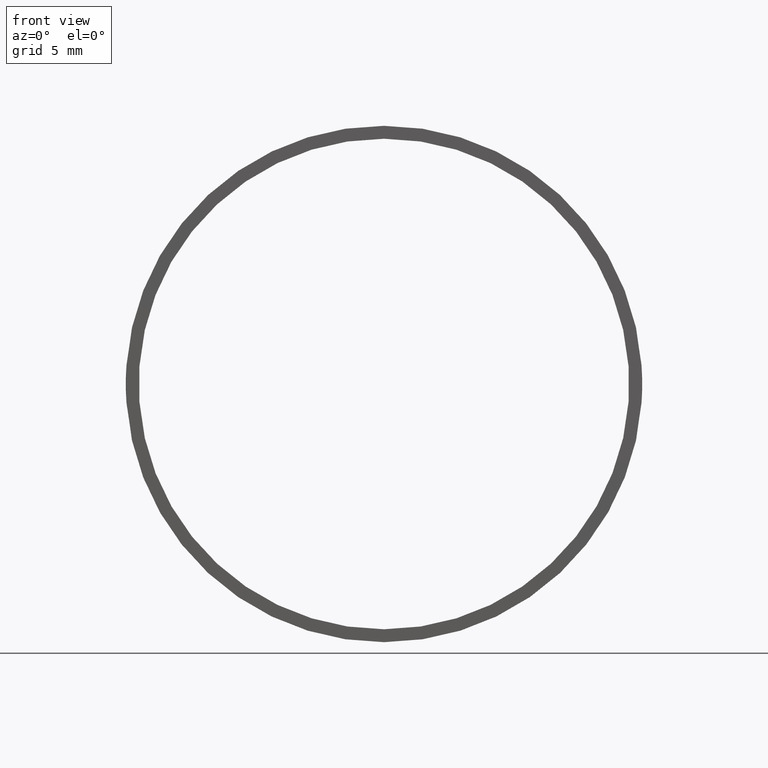
[diagram: clean part render]
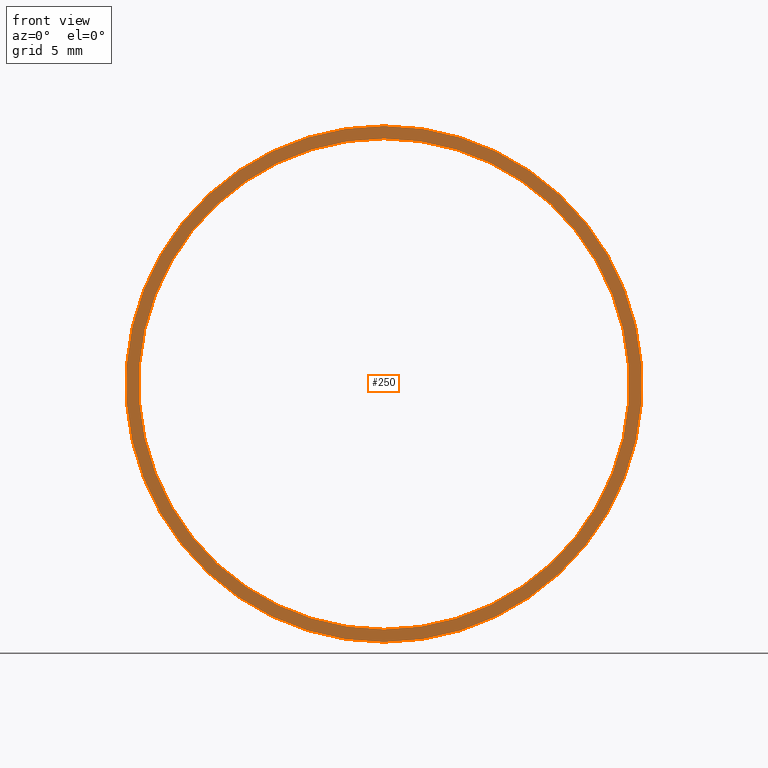
[diagram: same view with one face highlighted and labeled with its STEP entity id]
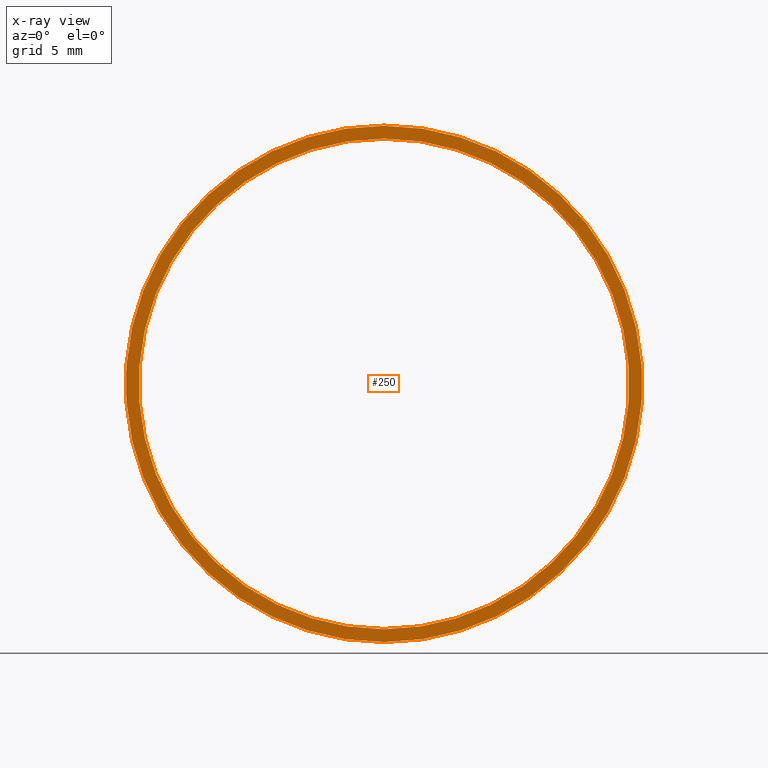
[diagram: x-ray of the same camera — body ghosted, the highlighted face saturated]
A machine part, front view. The second image highlights one B-rep face of the part: STEP entity #250.
The next image is the same camera in x-ray: the body ghosted, the highlighted face saturated — about 0% of this face is hidden behind the body in this view.
In plain terms, the highlighted planar face has unit normal (-0, 1, 0).
Its self-contained STEP definition (entity closure, byte-faithful):
#1 = EDGE_CURVE ( 'NONE', #409, #463, #205, .T. ) ;
#2 = AXIS2_PLACEMENT_3D ( 'NONE', #132, #398, #504 ) ;
#3 = CARTESIAN_POINT ( 'NONE',  ( 0.0000000000000000000, -4.464249787179428900, 0.0000000000000000000 ) ) ;
#34 = EDGE_CURVE ( 'NONE', #463, #409, #164, .T. ) ;
#39 = AXIS2_PLACEMENT_3D ( 'NONE', #147, #416, #326 ) ;
#46 = ORIENTED_EDGE ( 'NONE', *, *, #380, .T. ) ;
#53 = EDGE_CURVE ( 'NONE', #194, #108, #302, .T. ) ;
#96 = FACE_BOUND ( 'NONE', #342, .T. ) ;
#108 = VERTEX_POINT ( 'NONE', #276 ) ;
#125 = FACE_OUTER_BOUND ( 'NONE', #137, .T. ) ;
#132 = CARTESIAN_POINT ( 'NONE',  ( 0.0000000000000000000, -4.464249787179428900, 0.0000000000000000000 ) ) ;
#133 = DIRECTION ( 'NONE',  ( -0.0000000000000000000, 1.000000000000000000, -0.0000000000000000000 ) ) ;
#136 = DIRECTION ( 'NONE',  ( 0.0000000000000000000, 0.0000000000000000000, 1.000000000000000000 ) ) ;
#137 = EDGE_LOOP ( 'NONE', ( #482, #186 ) ) ;
#147 = CARTESIAN_POINT ( 'NONE',  ( 14.25000000000000700, -4.464249787179429800, 0.0000000000000000000 ) ) ;
#164 = CIRCLE ( 'NONE', #224, 15.00000000000000700 ) ;
#170 = CARTESIAN_POINT ( 'NONE',  ( 0.0000000000000000000, -4.464249787179428900, 0.0000000000000000000 ) ) ;
#186 = ORIENTED_EDGE ( 'NONE', *, *, #1, .F. ) ;
#188 = CARTESIAN_POINT ( 'NONE',  ( 0.0000000000000000000, -4.464249787179428900, 14.25000000000000700 ) ) ;
#194 = VERTEX_POINT ( 'NONE', #188 ) ;
#205 = CIRCLE ( 'NONE', #2, 15.00000000000000700 ) ;
#224 = AXIS2_PLACEMENT_3D ( 'NONE', #238, #236, #241 ) ;
#236 = DIRECTION ( 'NONE',  ( -0.0000000000000000000, 1.000000000000000000, -0.0000000000000000000 ) ) ;
#238 = CARTESIAN_POINT ( 'NONE',  ( 0.0000000000000000000, -4.464249787179428900, 0.0000000000000000000 ) ) ;
#240 = DIRECTION ( 'NONE',  ( -0.0000000000000000000, 1.000000000000000000, -0.0000000000000000000 ) ) ;
#241 = DIRECTION ( 'NONE',  ( 0.0000000000000000000, 0.0000000000000000000, 1.000000000000000000 ) ) ;
#250 = ADVANCED_FACE ( 'NONE', ( #125, #96 ), #368, .F. ) ;
#251 = CARTESIAN_POINT ( 'NONE',  ( 1.836970198721030800E-015, -4.464249787179428900, -15.00000000000000700 ) ) ;
#276 = CARTESIAN_POINT ( 'NONE',  ( 1.745121688784979000E-015, -4.464249787179428900, -14.25000000000000700 ) ) ;
#279 = DIRECTION ( 'NONE',  ( 0.0000000000000000000, 0.0000000000000000000, 1.000000000000000000 ) ) ;
#302 = CIRCLE ( 'NONE', #405, 14.25000000000000700 ) ;
#326 = DIRECTION ( 'NONE',  ( 0.0000000000000000000, 0.0000000000000000000, 1.000000000000000000 ) ) ;
#342 = EDGE_LOOP ( 'NONE', ( #415, #46 ) ) ;
#368 = PLANE ( 'NONE',  #39 ) ;
#380 = EDGE_CURVE ( 'NONE', #108, #194, #466, .T. ) ;
#398 = DIRECTION ( 'NONE',  ( -0.0000000000000000000, 1.000000000000000000, -0.0000000000000000000 ) ) ;
#401 = CARTESIAN_POINT ( 'NONE',  ( 0.0000000000000000000, -4.464249787179428900, 15.00000000000000700 ) ) ;
#405 = AXIS2_PLACEMENT_3D ( 'NONE', #3, #240, #279 ) ;
#409 = VERTEX_POINT ( 'NONE', #251 ) ;
#415 = ORIENTED_EDGE ( 'NONE', *, *, #53, .T. ) ;
#416 = DIRECTION ( 'NONE',  ( -0.0000000000000000000, 1.000000000000000000, 0.0000000000000000000 ) ) ;
#463 = VERTEX_POINT ( 'NONE', #401 ) ;
#466 = CIRCLE ( 'NONE', #472, 14.25000000000000700 ) ;
#472 = AXIS2_PLACEMENT_3D ( 'NONE', #170, #133, #136 ) ;
#482 = ORIENTED_EDGE ( 'NONE', *, *, #34, .F. ) ;
#504 = DIRECTION ( 'NONE',  ( 0.0000000000000000000, 0.0000000000000000000, 1.000000000000000000 ) ) ;